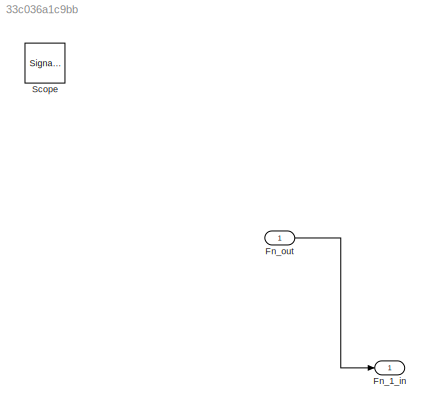
MODEL slx_33c036a1c9bb
KIND model
BLOCK [Outport] Fn_1_in
  IconDisplay = Port number
BLOCK [Inport] Fn_out
  IconDisplay = Port number
BLOCK [SignalViewerScope] Scope
  IOType = viewer
  MaxDataPoints = 7500
  NumInputPorts = 2
  Ports = []
  RefreshTime = 0.035000
  ShowDataMarkers = off
  ShowLegends = off
  YMax = 5~5
  YMin = -5~-5
  ZoomMode = yonly
LINE Fn_out:1 -> Fn_1_in:1
